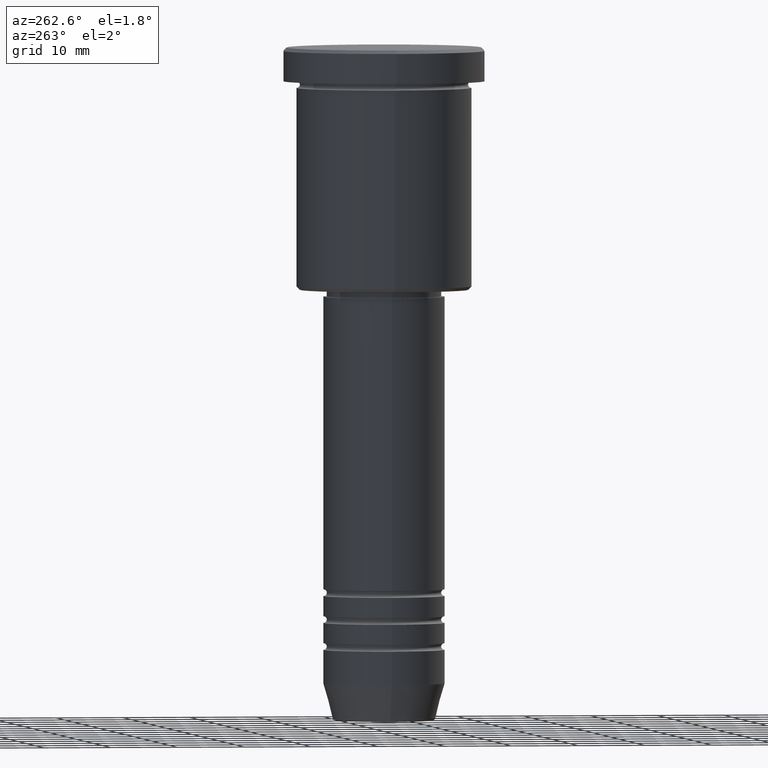
[diagram: clean part render]
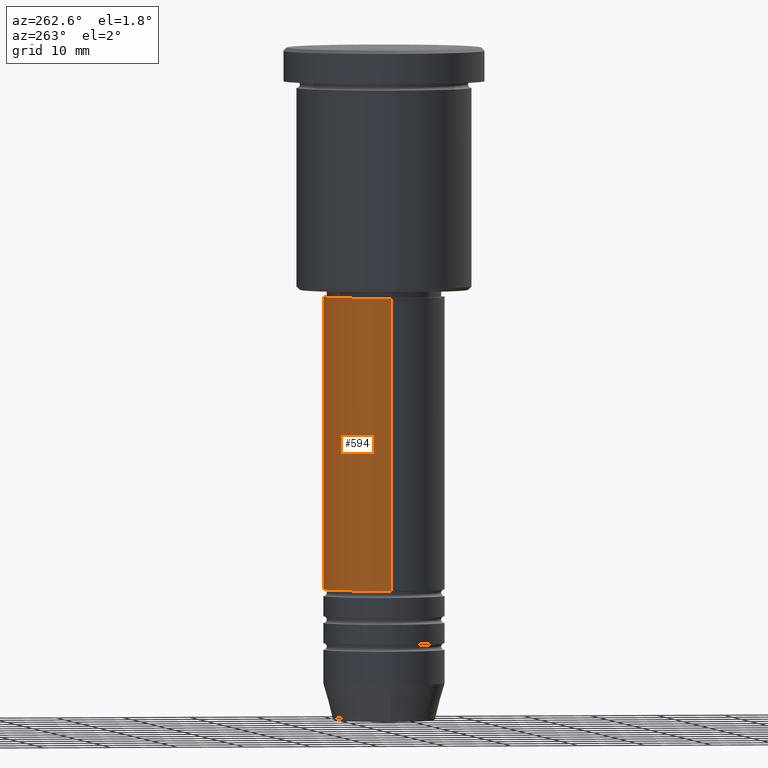
[diagram: same view with one face highlighted and labeled with its STEP entity id]
A machine part, auxiliary view. The second image highlights one B-rep face of the part: STEP entity #594.
In plain terms, the highlighted cylindrical surface (partial cylindrical patch) has radius 9 mm, axis along (-0, -0, 1).
Its self-contained STEP definition (entity closure, byte-faithful):
#81 = CARTESIAN_POINT ( 'NONE',  ( 8.999999999999998224, 0.000000000000000000, -37.00000000000000711 ) ) ;
#83 = DIRECTION ( 'NONE',  ( -0.000000000000000000, -0.000000000000000000, 1.000000000000000000 ) ) ;
#97 = AXIS2_PLACEMENT_3D ( 'NONE', #449, #596, #1000 ) ;
#102 = EDGE_CURVE ( 'NONE', #352, #458, #981, .T. ) ;
#130 = CARTESIAN_POINT ( 'NONE',  ( -9.000000000000001776, 1.102182119232617911E-15, -80.49999999999998579 ) ) ;
#167 = ORIENTED_EDGE ( 'NONE', *, *, #1180, .F. ) ;
#175 = LINE ( 'NONE', #455, #583 ) ;
#197 = ORIENTED_EDGE ( 'NONE', *, *, #102, .T. ) ;
#332 = AXIS2_PLACEMENT_3D ( 'NONE', #502, #611, #622 ) ;
#352 = VERTEX_POINT ( 'NONE', #638 ) ;
#386 = EDGE_CURVE ( 'NONE', #352, #831, #175, .T. ) ;
#410 = LINE ( 'NONE', #414, #1065 ) ;
#414 = CARTESIAN_POINT ( 'NONE',  ( -9.000000000000000000, 1.102182119232617714E-15, 0.000000000000000000 ) ) ;
#419 = FACE_OUTER_BOUND ( 'NONE', #995, .T. ) ;
#423 = DIRECTION ( 'NONE',  ( -0.000000000000000000, -0.000000000000000000, 1.000000000000000000 ) ) ;
#444 = ORIENTED_EDGE ( 'NONE', *, *, #386, .F. ) ;
#449 = CARTESIAN_POINT ( 'NONE',  ( 0.000000000000000000, 0.000000000000000000, -80.49999999999998579 ) ) ;
#455 = CARTESIAN_POINT ( 'NONE',  ( 9.000000000000000000, 0.000000000000000000, 0.000000000000000000 ) ) ;
#458 = VERTEX_POINT ( 'NONE', #130 ) ;
#483 = VERTEX_POINT ( 'NONE', #1041 ) ;
#502 = CARTESIAN_POINT ( 'NONE',  ( 0.000000000000000000, 0.000000000000000000, 0.000000000000000000 ) ) ;
#509 = DIRECTION ( 'NONE',  ( 1.000000000000000000, 0.000000000000000000, 0.000000000000000000 ) ) ;
#520 = CYLINDRICAL_SURFACE ( 'NONE', #332, 9.000000000000000000 ) ;
#583 = VECTOR ( 'NONE', #83, 1000.000000000000000 ) ;
#594 = ADVANCED_FACE ( 'NONE', ( #419 ), #520, .T. ) ;
#596 = DIRECTION ( 'NONE',  ( -0.000000000000000000, -0.000000000000000000, 1.000000000000000000 ) ) ;
#601 = DIRECTION ( 'NONE',  ( -0.000000000000000000, -0.000000000000000000, 1.000000000000000000 ) ) ;
#606 = EDGE_CURVE ( 'NONE', #458, #483, #410, .T. ) ;
#611 = DIRECTION ( 'NONE',  ( -0.000000000000000000, -0.000000000000000000, 1.000000000000000000 ) ) ;
#622 = DIRECTION ( 'NONE',  ( 1.000000000000000000, 0.000000000000000000, 0.000000000000000000 ) ) ;
#638 = CARTESIAN_POINT ( 'NONE',  ( 9.000000000000001776, 0.000000000000000000, -80.49999999999998579 ) ) ;
#691 = AXIS2_PLACEMENT_3D ( 'NONE', #1053, #423, #509 ) ;
#752 = ORIENTED_EDGE ( 'NONE', *, *, #606, .T. ) ;
#831 = VERTEX_POINT ( 'NONE', #81 ) ;
#981 = CIRCLE ( 'NONE', #97, 9.000000000000001776 ) ;
#995 = EDGE_LOOP ( 'NONE', ( #197, #752, #167, #444 ) ) ;
#1000 = DIRECTION ( 'NONE',  ( 1.000000000000000000, 0.000000000000000000, 0.000000000000000000 ) ) ;
#1041 = CARTESIAN_POINT ( 'NONE',  ( -8.999999999999998224, 1.102182119232617714E-15, -37.00000000000000711 ) ) ;
#1053 = CARTESIAN_POINT ( 'NONE',  ( 0.000000000000000000, 0.000000000000000000, -37.00000000000000711 ) ) ;
#1065 = VECTOR ( 'NONE', #601, 1000.000000000000000 ) ;
#1098 = CIRCLE ( 'NONE', #691, 8.999999999999998224 ) ;
#1180 = EDGE_CURVE ( 'NONE', #831, #483, #1098, .T. ) ;